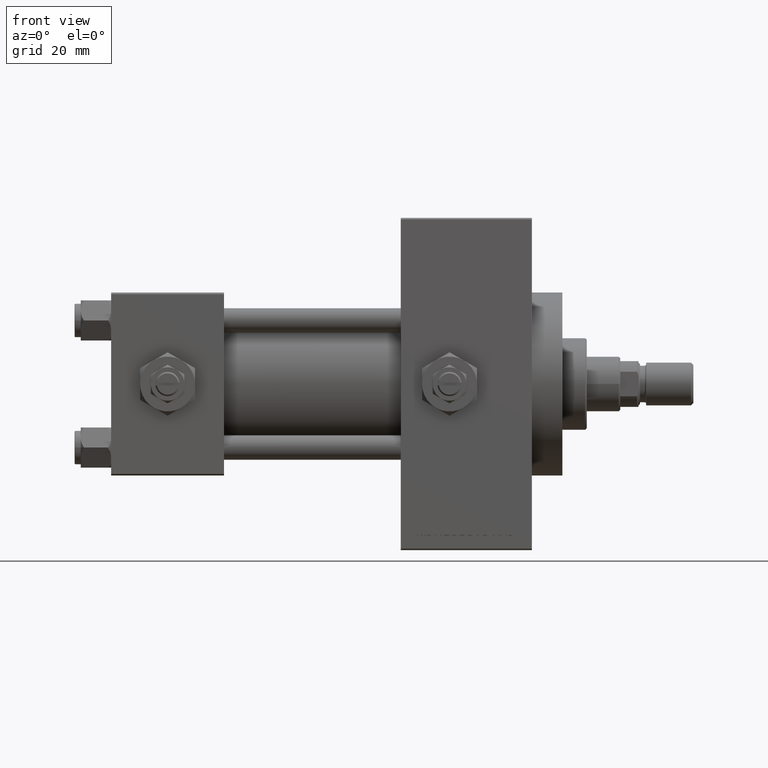
[diagram: clean part render]
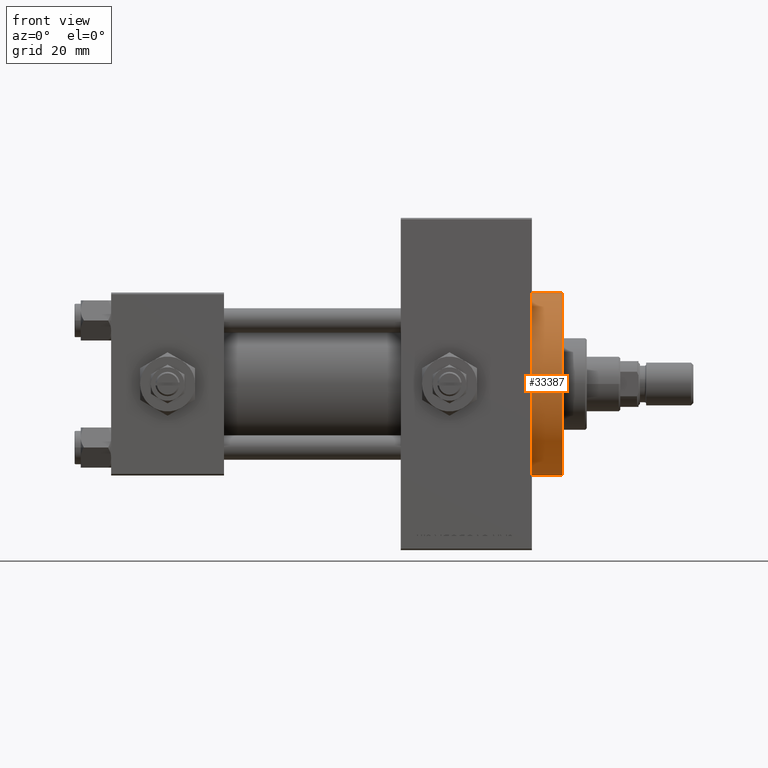
[diagram: same view with one face highlighted and labeled with its STEP entity id]
A machine part, front view. The second image highlights one B-rep face of the part: STEP entity #33387.
In plain terms, the highlighted cylindrical surface (partial cylindrical patch) has radius 30 mm, axis along (-1, -0, -0).
Its self-contained STEP definition (entity closure, byte-faithful):
#164 = CARTESIAN_POINT ( 'NONE',  ( 148.0000000000000284, 0.000000000000000000, 30.00000000000000000 ) ) ;
#458 = VERTEX_POINT ( 'NONE', #42905 ) ;
#923 = CIRCLE ( 'NONE', #47505, 30.00000000000000000 ) ;
#1961 = VERTEX_POINT ( 'NONE', #34195 ) ;
#2004 = CIRCLE ( 'NONE', #9226, 30.00000000000000000 ) ;
#2708 = ORIENTED_EDGE ( 'NONE', *, *, #10547, .T. ) ;
#4693 = LINE ( 'NONE', #164, #39299 ) ;
#4971 = AXIS2_PLACEMENT_3D ( 'NONE', #32920, #48265, #14538 ) ;
#5280 = AXIS2_PLACEMENT_3D ( 'NONE', #5995, #40975, #14534 ) ;
#5995 = CARTESIAN_POINT ( 'NONE',  ( 148.0000000000000284, 0.000000000000000000, 0.000000000000000000 ) ) ;
#6005 = CARTESIAN_POINT ( 'NONE',  ( 148.0000000000000284, 0.000000000000000000, 30.00000000000000000 ) ) ;
#6158 = ORIENTED_EDGE ( 'NONE', *, *, #8228, .T. ) ;
#7076 = VERTEX_POINT ( 'NONE', #6005 ) ;
#8228 = EDGE_CURVE ( 'NONE', #1961, #45927, #923, .T. ) ;
#8432 = VECTOR ( 'NONE', #32767, 1000.000000000000000 ) ;
#9226 = AXIS2_PLACEMENT_3D ( 'NONE', #43825, #40301, #25184 ) ;
#10547 = EDGE_CURVE ( 'NONE', #458, #1961, #2004, .T. ) ;
#14472 = VERTEX_POINT ( 'NONE', #42362 ) ;
#14534 = DIRECTION ( 'NONE',  ( 0.000000000000000000, 0.000000000000000000, -1.000000000000000000 ) ) ;
#14538 = DIRECTION ( 'NONE',  ( 0.000000000000000000, 0.000000000000000000, 1.000000000000000000 ) ) ;
#15277 = DIRECTION ( 'NONE',  ( 0.000000000000000000, 0.000000000000000000, -1.000000000000000000 ) ) ;
#22331 = ORIENTED_EDGE ( 'NONE', *, *, #45858, .F. ) ;
#25184 = DIRECTION ( 'NONE',  ( 0.000000000000000000, 0.000000000000000000, -1.000000000000000000 ) ) ;
#25457 = CARTESIAN_POINT ( 'NONE',  ( 148.0000000000000284, 3.673940397442059178E-15, -30.00000000000000000 ) ) ;
#26159 = CIRCLE ( 'NONE', #5280, 30.00000000000000000 ) ;
#26996 = ORIENTED_EDGE ( 'NONE', *, *, #40488, .F. ) ;
#28237 = LINE ( 'NONE', #25457, #8432 ) ;
#28244 = EDGE_CURVE ( 'NONE', #7076, #458, #4693, .T. ) ;
#29136 = CARTESIAN_POINT ( 'NONE',  ( 138.0000000000000000, 3.673940397442059178E-15, -30.00000000000000000 ) ) ;
#31212 = EDGE_LOOP ( 'NONE', ( #26996, #22331, #35240, #2708, #6158 ) ) ;
#32767 = DIRECTION ( 'NONE',  ( -1.000000000000000000, -0.000000000000000000, -0.000000000000000000 ) ) ;
#32920 = CARTESIAN_POINT ( 'NONE',  ( 148.0000000000000284, 0.000000000000000000, 0.000000000000000000 ) ) ;
#33387 = ADVANCED_FACE ( 'NONE', ( #40723 ), #47509, .T. ) ;
#34195 = CARTESIAN_POINT ( 'NONE',  ( 138.0000000000000000, -30.00000000000000000, 0.000000000000000000 ) ) ;
#34393 = CARTESIAN_POINT ( 'NONE',  ( 138.0000000000000000, 0.000000000000000000, 0.000000000000000000 ) ) ;
#35240 = ORIENTED_EDGE ( 'NONE', *, *, #28244, .T. ) ;
#39299 = VECTOR ( 'NONE', #42691, 1000.000000000000000 ) ;
#40301 = DIRECTION ( 'NONE',  ( 1.000000000000000000, 0.000000000000000000, 0.000000000000000000 ) ) ;
#40488 = EDGE_CURVE ( 'NONE', #14472, #45927, #28237, .T. ) ;
#40723 = FACE_OUTER_BOUND ( 'NONE', #31212, .T. ) ;
#40975 = DIRECTION ( 'NONE',  ( 1.000000000000000000, 0.000000000000000000, 0.000000000000000000 ) ) ;
#42362 = CARTESIAN_POINT ( 'NONE',  ( 148.0000000000000284, 3.673940397442059178E-15, -30.00000000000000000 ) ) ;
#42691 = DIRECTION ( 'NONE',  ( -1.000000000000000000, -0.000000000000000000, -0.000000000000000000 ) ) ;
#42905 = CARTESIAN_POINT ( 'NONE',  ( 138.0000000000000000, 0.000000000000000000, 30.00000000000000000 ) ) ;
#43825 = CARTESIAN_POINT ( 'NONE',  ( 138.0000000000000000, 0.000000000000000000, 0.000000000000000000 ) ) ;
#45858 = EDGE_CURVE ( 'NONE', #7076, #14472, #26159, .T. ) ;
#45927 = VERTEX_POINT ( 'NONE', #29136 ) ;
#47505 = AXIS2_PLACEMENT_3D ( 'NONE', #34393, #49744, #15277 ) ;
#47509 = CYLINDRICAL_SURFACE ( 'NONE', #4971, 30.00000000000000000 ) ;
#48265 = DIRECTION ( 'NONE',  ( -1.000000000000000000, -0.000000000000000000, -0.000000000000000000 ) ) ;
#49744 = DIRECTION ( 'NONE',  ( 1.000000000000000000, 0.000000000000000000, 0.000000000000000000 ) ) ;